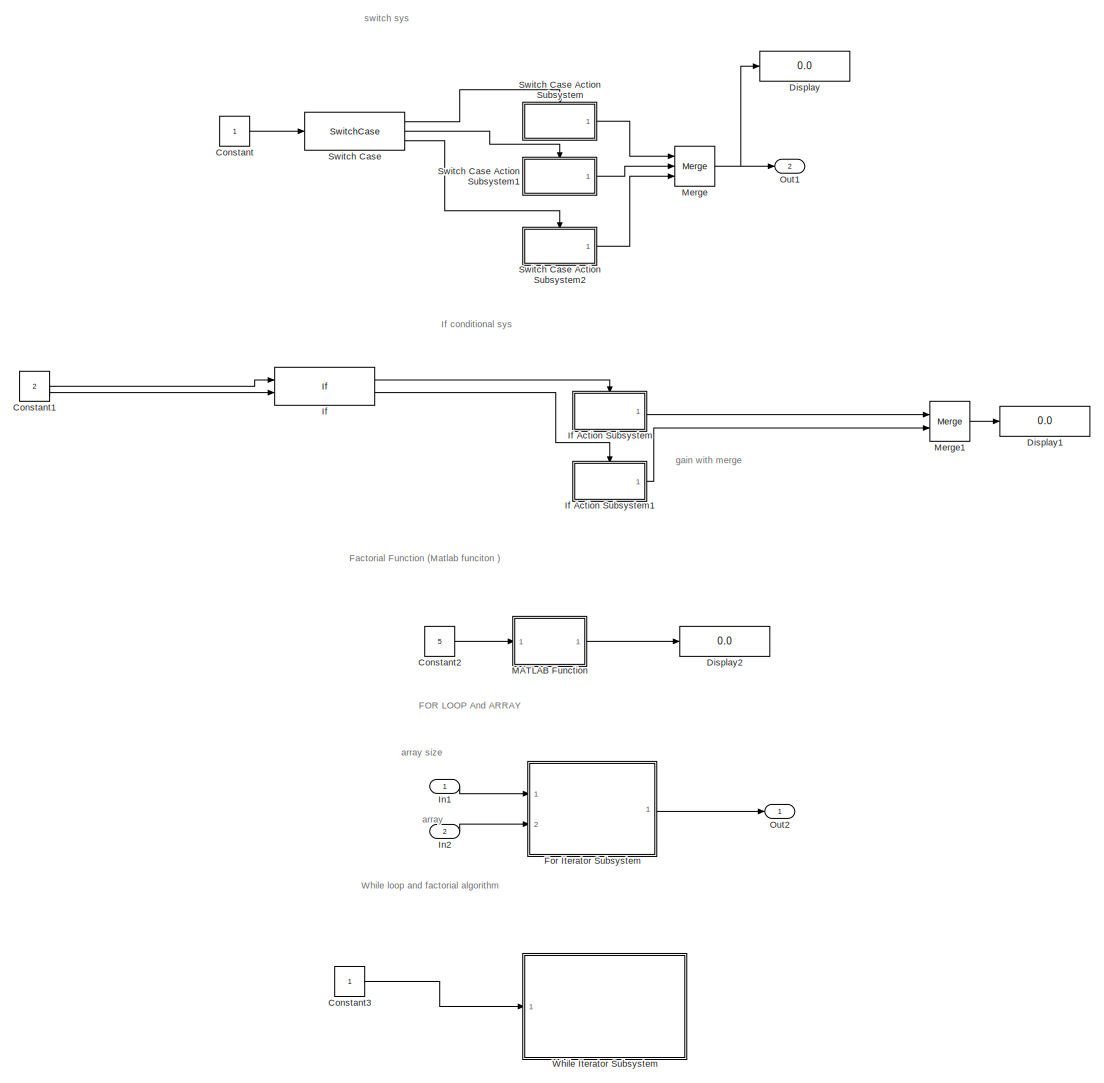
[diagram: root canvas - part 1/1, most of the canvas]
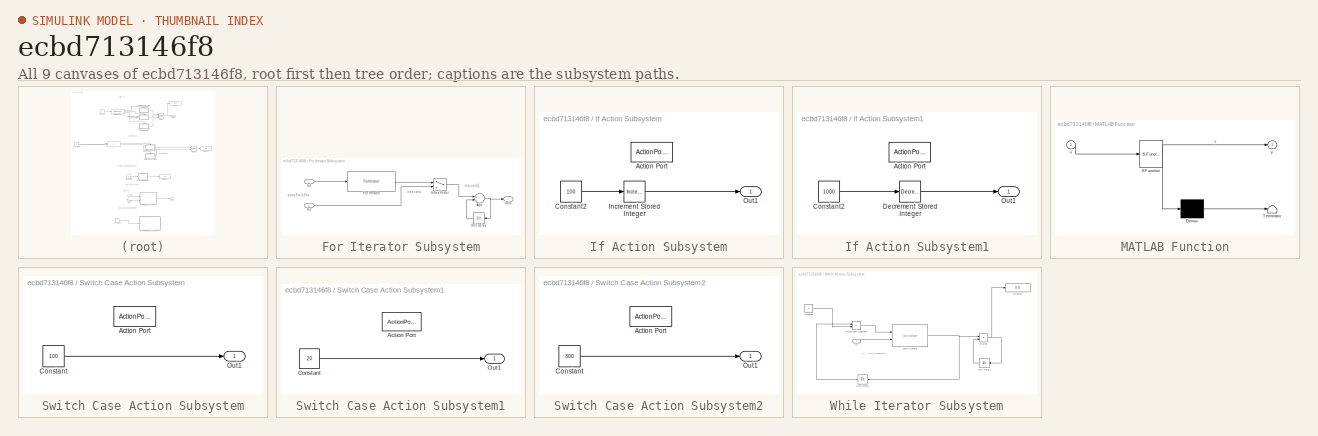
[diagram: thumbnail index - all 9 canvases of the model, root first then tree order]
MODEL slx_ecbd713146f8
KIND model
CONFIG AbsTol = auto
CONFIG EnableMultiTasking = off
CONFIG FixedStep = auto
CONFIG MaxStep = auto
CONFIG MinStep = auto
CONFIG RelTol = 1e-3
CONFIG SampleTimeConstraint = Unconstrained
CONFIG Solver = VariableStepAuto
CONFIG SolverName = VariableStepAuto
CONFIG StartTime = 0.0
CONFIG StopTime = 10.0
BLOCK [Constant] Constant
  Commented = on
BLOCK [Constant] Constant1
  Commented = on
  Value = 2
BLOCK [Constant] Constant2
  Commented = on
  Value = 5
BLOCK [Constant] Constant3
  OutDataTypeStr = int32
BLOCK [Display] Display
  Commented = on
  Decimation = 1
  Ports = [1]
BLOCK [Display] Display1
  Commented = on
  Decimation = 1
  Ports = [1]
BLOCK [Display] Display2
  Commented = on
  Decimation = 1
  Ports = [1]
BLOCK [SubSystem] For Iterator Subsystem
  Commented = on
  Ports = [2, 1]
  RequestExecContextInheritance = off
  TreatAsAtomicUnit = on
BLOCK [Sum] For Iterator Subsystem/Add
  InputSameDT = off
  OutDataTypeStr = Inherit: Inherit via internal rule
  Ports = [2, 1]
  SaturateOnIntegerOverflow = off
BLOCK [ForIterator] For Iterator Subsystem/For Iterator
  IterationSource = external
  Ports = [1, 1]
BLOCK [Inport] For Iterator Subsystem/In1
  IconDisplay = Port number
BLOCK [Inport] For Iterator Subsystem/In2
  IconDisplay = Port number
  Port = 2
BLOCK [MultiPortSwitch] For Iterator Subsystem/Index Vector
  DataPortOrder = Zero-based contiguous
  InputSameDT = off
  Inputs = 1
  Ports = [2, 1]
  SaturateOnIntegerOverflow = off
  zeroidx = on
BLOCK [Outport] For Iterator Subsystem/Out1
  IconDisplay = Port number
BLOCK [UnitDelay] For Iterator Subsystem/Unit Delay
  InputProcessing = Elements as channels (sample based)
  SampleTime = -1
BLOCK [If] If
  Commented = on
  IfExpression = u1 > 0 & u2 == 1
  NumInputs = 2
  Ports = [2, 2]
BLOCK [SubSystem] If Action Subsystem
  Commented = on
  Ports = [0, 1, 0, 0, 0, 0, 0, 1]
  RequestExecContextInheritance = off
  TreatAsAtomicUnit = on
BLOCK [ActionPort] If Action Subsystem/Action Port
  ActionType = then
BLOCK [Constant] If Action Subsystem/Constant2
  Value = 100
BLOCK [Reference] If Action Subsystem/Increment Stored Integer  REF=simulink/Additional Math
& Discrete/Additional Math:
Increment - Decrement/Increment
Stored Integer
  Ports = [1, 1]
  SourceBlock = simulink/Additional Math\n& Discrete/Additional Math:\nIncrement - Decrement/Increment\nStored Integer
  SourceProductBaseCode = SL
  SourceProductName = Simulink
  SourceType = Stored Integer Value Increment
BLOCK [Outport] If Action Subsystem/Out1
  IconDisplay = Port number
BLOCK [SubSystem] If Action Subsystem1
  Commented = on
  Ports = [0, 1, 0, 0, 0, 0, 0, 1]
  RequestExecContextInheritance = off
  TreatAsAtomicUnit = on
BLOCK [ActionPort] If Action Subsystem1/Action Port
  ActionType = else
BLOCK [Constant] If Action Subsystem1/Constant2
  Value = 1000
BLOCK [Reference] If Action Subsystem1/Decrement Stored Integer  REF=simulink/Additional Math
& Discrete/Additional Math:
Increment - Decrement/Decrement
Stored Integer
  Ports = [1, 1]
  SourceBlock = simulink/Additional Math\n& Discrete/Additional Math:\nIncrement - Decrement/Decrement\nStored Integer
  SourceProductBaseCode = SL
  SourceProductName = Simulink
  SourceType = Stored Integer Value Decrement
BLOCK [Outport] If Action Subsystem1/Out1
  IconDisplay = Port number
BLOCK [Inport] In1
  IconDisplay = Port number
  OutDataTypeStr = uint32
BLOCK [Inport] In2
  IconDisplay = Port number
  OutDataTypeStr = uint32
  Port = 2
  PortDimensions = 5
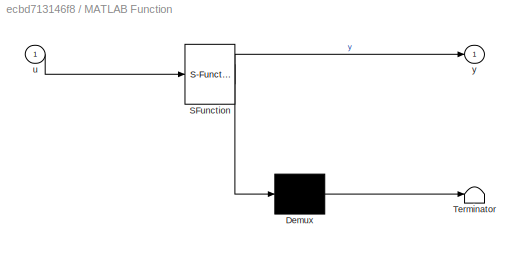
BLOCK [SubSystem] MATLAB Function
  Commented = on
  ErrorFcn = Stateflow.Translate.translate
  PermitHierarchicalResolution = ExplicitOnly
  Ports = [1, 1]
  RequestExecContextInheritance = off
  SFBlockType = MATLAB Function
  TreatAsAtomicUnit = on
BLOCK [Demux] MATLAB Function/ Demux 
  Outputs = 1
  Ports = [1, 1]
BLOCK [S-Function] MATLAB Function/ SFunction 
  EnableBusSupport = on
  FunctionName = sf_sfun
  PortCounts = [1 2]
  Ports = [1, 2]
  SFcnIsStateOwnerBlock = off
  SFunctionDeploymentMode = off
  Tag = Stateflow S-Function session2 2
BLOCK [Terminator] MATLAB Function/ Terminator 
BLOCK [Inport] MATLAB Function/u
  IconDisplay = Port number
BLOCK [Outport] MATLAB Function/y
  IconDisplay = Port number
BLOCK [Merge] Merge
  Commented = on
  Inputs = 3
  Ports = [3, 1]
BLOCK [Merge] Merge1
  Commented = on
  Ports = [2, 1]
BLOCK [Outport] Out1
  IconDisplay = Port number
  Port = 2
BLOCK [Outport] Out2
  IconDisplay = Port number
  OutDataTypeStr = uint32
BLOCK [SwitchCase] Switch Case
  CaseConditions = {1,2}
  Commented = on
  Ports = [1, 3]
BLOCK [SubSystem] Switch Case Action Subsystem
  Commented = on
  Ports = [0, 1, 0, 0, 0, 0, 0, 1]
  RequestExecContextInheritance = off
  TreatAsAtomicUnit = on
BLOCK [ActionPort] Switch Case Action Subsystem/Action Port
  ActionType = case
BLOCK [Constant] Switch Case Action Subsystem/Constant
  Value = 100
BLOCK [Outport] Switch Case Action Subsystem/Out1
  IconDisplay = Port number
BLOCK [SubSystem] Switch Case Action Subsystem1
  Commented = on
  Ports = [0, 1, 0, 0, 0, 0, 0, 1]
  RequestExecContextInheritance = off
  TreatAsAtomicUnit = on
BLOCK [ActionPort] Switch Case Action Subsystem1/Action Port
  ActionType = case
BLOCK [Constant] Switch Case Action Subsystem1/Constant
  Value = 20
BLOCK [Outport] Switch Case Action Subsystem1/Out1
  IconDisplay = Port number
BLOCK [SubSystem] Switch Case Action Subsystem2
  Commented = on
  Ports = [0, 1, 0, 0, 0, 0, 0, 1]
  RequestExecContextInheritance = off
  TreatAsAtomicUnit = on
BLOCK [ActionPort] Switch Case Action Subsystem2/Action Port
  ActionType = default
BLOCK [Constant] Switch Case Action Subsystem2/Constant
  Value = 300
BLOCK [Outport] Switch Case Action Subsystem2/Out1
  IconDisplay = Port number
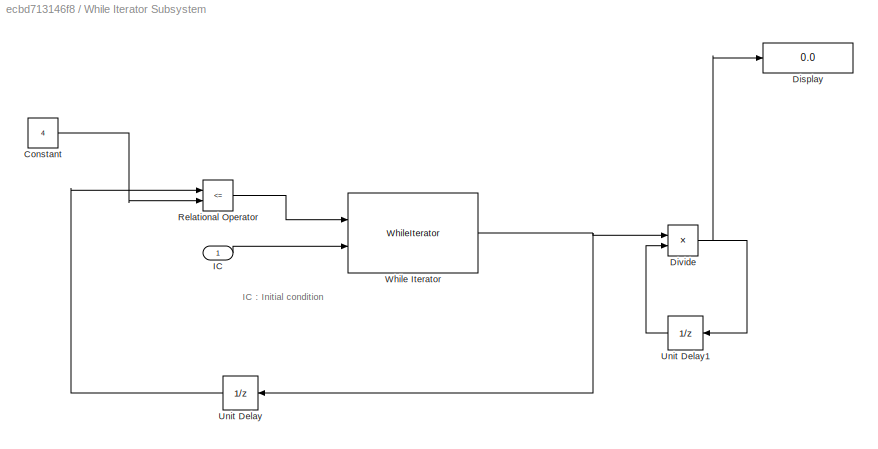
BLOCK [SubSystem] While Iterator Subsystem
  Ports = [1]
  RequestExecContextInheritance = off
  TreatAsAtomicUnit = on
BLOCK [Constant] While Iterator Subsystem/Constant
  OutDataTypeStr = int32
  Value = 4
BLOCK [Display] While Iterator Subsystem/Display
  Decimation = 1
  Ports = [1]
BLOCK [Product] While Iterator Subsystem/Divide
  InputSameDT = off
  Inputs = **
  OutDataTypeStr = int32
  Ports = [2, 1]
  RndMeth = Floor
  SaturateOnIntegerOverflow = off
BLOCK [Inport] While Iterator Subsystem/IC
  IconDisplay = Port number
  OutDataTypeStr = int32
BLOCK [RelationalOperator] While Iterator Subsystem/Relational Operator
  InputSameDT = off
  Operator = <=
  OutDataTypeStr = boolean
  Ports = [2, 1]
  RndMeth = Simplest
BLOCK [UnitDelay] While Iterator Subsystem/Unit Delay
  InitialCondition = 1
  InputProcessing = Elements as channels (sample based)
  SampleTime = -1
BLOCK [UnitDelay] While Iterator Subsystem/Unit Delay1
  InitialCondition = 1
  InputProcessing = Elements as channels (sample based)
  SampleTime = -1
BLOCK [WhileIterator] While Iterator Subsystem/While Iterator
  MaxIters = 4
  Ports = [2, 1]
  ResetStates = reset
  ShowIterationPort = on
ANNOTATION (root): While loop and factorial algorithm
ANNOTATION (root): FOR LOOP And ARRAY
ANNOTATION (root): Factorial Function (Matlab funciton )
ANNOTATION (root): If conditional sys
ANNOTATION (root): switch sys
ANNOTATION (root): array
ANNOTATION (root): array size
ANNOTATION (root): gain with merge
ANNOTATION For Iterator Subsystem: array 3la b3do
ANNOTATION For Iterator Subsystem: index vect.
ANNOTATION For Iterator Subsystem: res+=arr[i]
ANNOTATION While Iterator Subsystem: IC : Initial condition
NET Constant1:1 -> If:1, If:2
LINE Constant2:1 -> MATLAB Function:1
LINE Constant3:1 -> While Iterator Subsystem:1
LINE Constant:1 -> Switch Case:1
NET For Iterator Subsystem/Add:1 -> For Iterator Subsystem/Out1:1, For Iterator Subsystem/Unit Delay:1
LINE For Iterator Subsystem/For Iterator:1 -> For Iterator Subsystem/Index Vector:1
LINE For Iterator Subsystem/In1:1 -> For Iterator Subsystem/For Iterator:1
LINE For Iterator Subsystem/In2:1 -> For Iterator Subsystem/Index Vector:2
LINE For Iterator Subsystem/Index Vector:1 -> For Iterator Subsystem/Add:1
LINE For Iterator Subsystem/Unit Delay:1 -> For Iterator Subsystem/Add:2
LINE For Iterator Subsystem:1 -> Out2:1
LINE If Action Subsystem/Constant2:1 -> If Action Subsystem/Increment Stored Integer:1
LINE If Action Subsystem/Increment Stored Integer:1 -> If Action Subsystem/Out1:1
LINE If Action Subsystem1/Constant2:1 -> If Action Subsystem1/Decrement Stored Integer:1
LINE If Action Subsystem1/Decrement Stored Integer:1 -> If Action Subsystem1/Out1:1
LINE If Action Subsystem1:1 -> Merge1:2
LINE If Action Subsystem:1 -> Merge1:1
LINE If:1 -> If Action Subsystem:ifaction
LINE If:2 -> If Action Subsystem1:ifaction
LINE In1:1 -> For Iterator Subsystem:1
LINE In2:1 -> For Iterator Subsystem:2
LINE MATLAB Function:1 -> Display2:1
LINE Merge1:1 -> Display1:1
NET Merge:1 -> Display:1, Out1:1
LINE Switch Case Action Subsystem/Constant:1 -> Switch Case Action Subsystem/Out1:1
LINE Switch Case Action Subsystem1/Constant:1 -> Switch Case Action Subsystem1/Out1:1
LINE Switch Case Action Subsystem1:1 -> Merge:2
LINE Switch Case Action Subsystem2/Constant:1 -> Switch Case Action Subsystem2/Out1:1
LINE Switch Case Action Subsystem2:1 -> Merge:3
LINE Switch Case Action Subsystem:1 -> Merge:1
LINE Switch Case:1 -> Switch Case Action Subsystem:ifaction
LINE Switch Case:2 -> Switch Case Action Subsystem1:ifaction
LINE Switch Case:3 -> Switch Case Action Subsystem2:ifaction
LINE While Iterator Subsystem/Constant:1 -> While Iterator Subsystem/Relational Operator:2
NET While Iterator Subsystem/Divide:1 -> While Iterator Subsystem/Display:1, While Iterator Subsystem/Unit Delay1:1
LINE While Iterator Subsystem/IC:1 -> While Iterator Subsystem/While Iterator:2
LINE While Iterator Subsystem/Relational Operator:1 -> While Iterator Subsystem/While Iterator:1
LINE While Iterator Subsystem/Unit Delay1:1 -> While Iterator Subsystem/Divide:2
LINE While Iterator Subsystem/Unit Delay:1 -> While Iterator Subsystem/Relational Operator:1
NET While Iterator Subsystem/While Iterator:1 -> While Iterator Subsystem/Divide:1, While Iterator Subsystem/Unit Delay:1
note: NET lines group one-source signal fan-out (src -> all destinations, sorted); 1:1 wires keep LINE
CHART MATLAB Function states=1 transitions=1
  STATE_LABEL 'eML_blk_kernel()'
  STATE_LABEL 'SCRIPT:\nfunction y = fcn(u)\nfact = 1;\nfor i = 1 : u\n    fact = i * fact ;\nend\n    \ny = fact ;\n'
